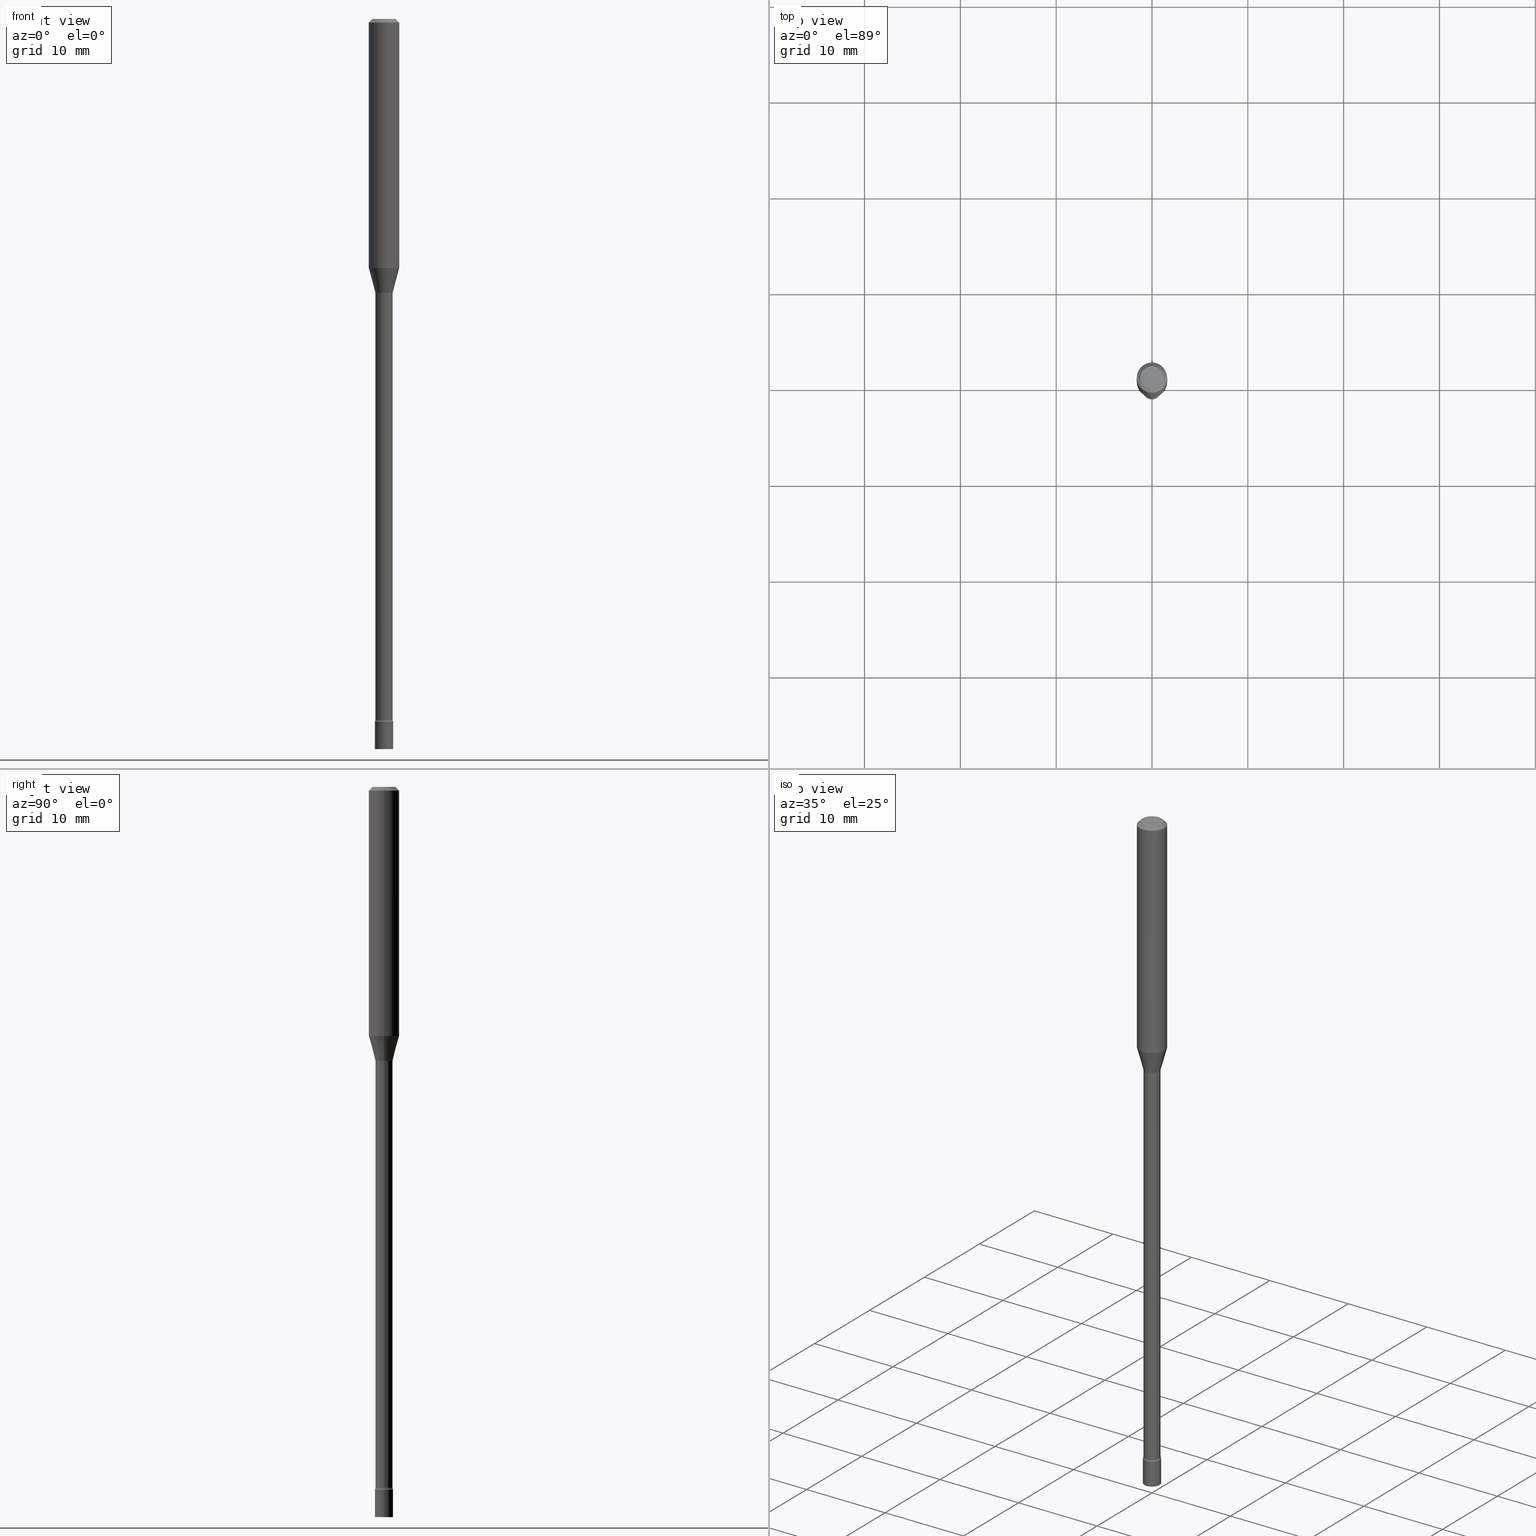
[diagram: canonical four-view strip — front | top / right | iso, engineering-drawing reading convention]
A machine part, canonical four-view strip (front | top / right | iso — engineering-drawing reading convention). The complete STEP part file that produces these views, byte-faithful:
ISO-10303-21;
HEADER;
FILE_DESCRIPTION (( 'STEP AP203' ),
    '1' );
FILE_NAME ('09710.STEP',
    '2024-03-09T01:06:56',
    ( '' ),
    ( '' ),
    'SwSTEP 2.0',
    'SolidWorks 2023',
    '' );
FILE_SCHEMA (( 'CONFIG_CONTROL_DESIGN' ));
ENDSEC;

DATA;
#1 = CARTESIAN_POINT ( 'NONE',  ( 0.04749999999999999362, -4.035134999187579609E-16, -2.891391092786643933E-17 ) ) ;
#2 = EDGE_LOOP ( 'NONE', ( #169, #90, #278, #4 ) ) ;
#3 = DIRECTION ( 'NONE',  ( 1.000000000000000000, -6.982962677686270655E-15, 0.000000000000000000 ) ) ;
#4 = ORIENTED_EDGE ( 'NONE', *, *, #168, .F. ) ;
#5 = AXIS2_PLACEMENT_3D ( 'NONE', #61, #25, #52 ) ;
#6 = CIRCLE ( 'NONE', #315, 0.01499999999999995955 ) ;
#7 = CARTESIAN_POINT ( 'NONE',  ( -0.05025000000000016953, -9.695270121667764211E-15, -2.879098259685361150 ) ) ;
#8 = ORIENTED_EDGE ( 'NONE', *, *, #172, .T. ) ;
#9 = VERTEX_POINT ( 'NONE', #182 ) ;
#10 = EDGE_CURVE ( 'NONE', #9, #321, #514, .T. ) ;
#11 = PERSON_AND_ORGANIZATION ( #159, #147 ) ;
#12 = EDGE_LOOP ( 'NONE', ( #503, #42, #500, #238 ) ) ;
#13 = VECTOR ( 'NONE', #89, 39.37007874015748143 ) ;
#14 = DATE_AND_TIME ( #55, #506 ) ;
#15 = DIRECTION ( 'NONE',  ( -2.445468806185136597E-29, 3.491481338843145583E-15, 1.000000000000000000 ) ) ;
#16 = CARTESIAN_POINT ( 'NONE',  ( 7.336406418555409790E-29, -1.047444401652943635E-14, -3.000000000000000444 ) ) ;
#17 = CARTESIAN_POINT ( 'NONE',  ( -0.03749999999999996392, -9.813453099330125724E-15, -2.887000000000000011 ) ) ;
#18 = DIRECTION ( 'NONE',  ( -6.982962677686266711E-15, -1.000000000000000000, 3.491481338843145583E-15 ) ) ;
#19 = EDGE_LOOP ( 'NONE', ( #404, #143, #474, #236 ) ) ;
#20 = PRODUCT_RELATED_PRODUCT_CATEGORY ( 'detail', '', ( #310 ) ) ;
#21 = CIRCLE ( 'NONE', #156, 0.06250000000000000000 ) ;
#22 = EDGE_CURVE ( 'NONE', #84, #378, #275, .T. ) ;
#23 = ORIENTED_EDGE ( 'NONE', *, *, #329, .F. ) ;
#24 = LINE ( 'NONE', #187, #515 ) ;
#25 = DIRECTION ( 'NONE',  ( -2.445468806185136597E-29, 3.491481338843145583E-15, 1.000000000000000000 ) ) ;
#26 = DIRECTION ( 'NONE',  ( -2.445468806185136597E-29, 3.491481338843145583E-15, 1.000000000000000000 ) ) ;
#27 = DIRECTION ( 'NONE',  ( -6.982962677686266711E-15, -1.000000000000000000, 3.491481338843145583E-15 ) ) ;
#28 = EDGE_CURVE ( 'NONE', #9, #332, #95, .T. ) ;
#29 = APPLICATION_CONTEXT ( 'configuration controlled 3d designs of mechanical parts and assemblies' ) ;
#30 = CIRCLE ( 'NONE', #223, 0.03749999999999999861 ) ;
#31 = CARTESIAN_POINT ( 'NONE',  ( -0.03576111260566397498, -3.667158523938391703E-15, -1.123092501787273267 ) ) ;
#32 =( LENGTH_UNIT ( ) NAMED_UNIT ( * ) SI_UNIT ( $, .METRE. ) );
#33 = CARTESIAN_POINT ( 'NONE',  ( 3.668203209277712094E-31, -5.237222008264728876E-17, -0.01500000000000003067 ) ) ;
#34 = DIRECTION ( 'NONE',  ( 1.000000000000000000, -6.982962677686255667E-15, 4.883557194083108977E-29 ) ) ;
#35 = DIRECTION ( 'NONE',  ( 1.000000000000000000, -6.982962677686265922E-15, 4.876176775795935793E-29 ) ) ;
#36 = CIRCLE ( 'NONE', #68, 0.06250000000000000000 ) ;
#37 = AXIS2_PLACEMENT_3D ( 'NONE', #64, #26, #381 ) ;
#38 = CC_DESIGN_APPROVAL ( #69, ( #395 ) ) ;
#39 = ORIENTED_EDGE ( 'NONE', *, *, #10, .T. ) ;
#40 = APPROVAL_ROLE ( '' ) ;
#41 = CARTESIAN_POINT ( 'NONE',  ( -0.03749999999999999861, 2.664535259100375598E-16, -1.844600658845589458E-30 ) ) ;
#42 = ORIENTED_EDGE ( 'NONE', *, *, #482, .T. ) ;
#43 = DATE_AND_TIME ( #400, #121 ) ;
#44 = CARTESIAN_POINT ( 'NONE',  ( 2.755981688099874044E-29, -3.934811439776616159E-15, -1.126974787463810967 ) ) ;
#45 = VERTEX_POINT ( 'NONE', #101 ) ;
#46 = AXIS2_PLACEMENT_3D ( 'NONE', #309, #27, #429 ) ;
#47 = LINE ( 'NONE', #170, #291 ) ;
#48 = ORIENTED_EDGE ( 'NONE', *, *, #272, .F. ) ;
#49 = ADVANCED_FACE ( 'NONE', ( #183 ), #423, .T. ) ;
#50 = ORIENTED_EDGE ( 'NONE', *, *, #59, .F. ) ;
#51 = DIRECTION ( 'NONE',  ( -1.000000000000000000, 6.982962677686265922E-15, -4.876176775795935793E-29 ) ) ;
#52 = DIRECTION ( 'NONE',  ( 1.000000000000000000, -6.982962677686270655E-15, 0.000000000000000000 ) ) ;
#53 = AXIS2_PLACEMENT_3D ( 'NONE', #56, #373, #459 ) ;
#54 = APPROVAL_PERSON_ORGANIZATION ( #387, #341, #237 ) ;
#55 = CALENDAR_DATE ( 2024, 8, 3 ) ;
#56 = CARTESIAN_POINT ( 'NONE',  ( 7.070806723891919892E-46, -1.009523804376275404E-31, -2.891391092786900929E-17 ) ) ;
#57 = FACE_OUTER_BOUND ( 'NONE', #497, .T. ) ;
#58 = CARTESIAN_POINT ( 'NONE',  ( 7.060068443456490467E-29, -1.007990662524016235E-14, -2.887000000000000011 ) ) ;
#59 = EDGE_CURVE ( 'NONE', #210, #259, #197, .T. ) ;
#60 = ORIENTED_EDGE ( 'NONE', *, *, #195, .F. ) ;
#61 = CARTESIAN_POINT ( 'NONE',  ( 2.755981688099874044E-29, -3.934811439776616159E-15, -1.126974787463810967 ) ) ;
#62 = CC_DESIGN_DATE_AND_TIME_ASSIGNMENT ( #193, #348, ( #433 ) ) ;
#63 = CARTESIAN_POINT ( 'NONE',  ( 3.668203209277712094E-31, -5.237222008264728876E-17, -0.01500000000000003067 ) ) ;
#64 = CARTESIAN_POINT ( 'NONE',  ( 2.746487679581201302E-29, -3.921256511784927150E-15, -1.123092501787273267 ) ) ;
#65 = CARTESIAN_POINT ( 'NONE',  ( -0.03524999999999999661, -6.743098328726474554E-15, -1.126974787463810967 ) ) ;
#66 = DIRECTION ( 'NONE',  ( -2.445468806185136597E-29, 3.491481338843145583E-15, 1.000000000000000000 ) ) ;
#67 = ORIENTED_EDGE ( 'NONE', *, *, #86, .T. ) ;
#68 = AXIS2_PLACEMENT_3D ( 'NONE', #398, #313, #164 ) ;
#69 = APPROVAL ( #132, 'UNSPECIFIED' ) ;
#70 = CIRCLE ( 'NONE', #437, 0.04749999999999999362 ) ;
#71 = EDGE_CURVE ( 'NONE', #235, #321, #175, .T. ) ;
#72 = EDGE_CURVE ( 'NONE', #279, #336, #227, .T. ) ;
#73 = FACE_OUTER_BOUND ( 'NONE', #481, .T. ) ;
#74 = CARTESIAN_POINT ( 'NONE',  ( 0.000000000000000000, 0.000000000000000000, 0.000000000000000000 ) ) ;
#75 = DIMENSIONAL_EXPONENTS ( 1.000000000000000000, 0.000000000000000000, 0.000000000000000000, 0.000000000000000000, 0.000000000000000000, 0.000000000000000000, 0.000000000000000000 ) ;
#76 = PERSON_AND_ORGANIZATION_ROLE ( 'design_owner' ) ;
#77 = DIRECTION ( 'NONE',  ( 1.000000000000000000, -6.982962677686266711E-15, 4.876176775795935793E-29 ) ) ;
#78 = CIRCLE ( 'NONE', #368, 0.03749999999999999861 ) ;
#79 = ORIENTED_EDGE ( 'NONE', *, *, #283, .F. ) ;
#80 = CIRCLE ( 'NONE', #241, 0.03525000000000021172 ) ;
#81 = LENGTH_MEASURE_WITH_UNIT ( LENGTH_MEASURE( 0.02539999999999999897 ), #32 );
#82 = EDGE_LOOP ( 'NONE', ( #127, #318 ) ) ;
#83 = PLANE ( 'NONE',  #158 ) ;
#84 = VERTEX_POINT ( 'NONE', #215 ) ;
#85 = ORIENTED_EDGE ( 'NONE', *, *, #72, .F. ) ;
#86 = EDGE_CURVE ( 'NONE', #279, #259, #165, .T. ) ;
#87 = AXIS2_PLACEMENT_3D ( 'NONE', #138, #499, #491 ) ;
#88 = CIRCLE ( 'NONE', #360, 0.03749999999999999861 ) ;
#89 = DIRECTION ( 'NONE',  ( -2.445468806185136877E-29, 3.491481338843145188E-15, 1.000000000000000000 ) ) ;
#90 = ORIENTED_EDGE ( 'NONE', *, *, #28, .T. ) ;
#91 = CARTESIAN_POINT ( 'NONE',  ( 0.03749999999999999861, -1.073630511694267136E-14, -3.000000000000000444 ) ) ;
#92 = EDGE_CURVE ( 'NONE', #279, #235, #289, .T. ) ;
#93 = DIRECTION ( 'NONE',  ( 2.445468806185136597E-29, -3.491481338843145583E-15, -1.000000000000000000 ) ) ;
#94 = ORIENTED_EDGE ( 'NONE', *, *, #195, .T. ) ;
#95 = CIRCLE ( 'NONE', #495, 0.03576111260566397498 ) ;
#96 = AXIS2_PLACEMENT_3D ( 'NONE', #208, #131, #284 ) ;
#97 = DIRECTION ( 'NONE',  ( -2.445468806185136877E-29, 3.491481338843145188E-15, 1.000000000000000000 ) ) ;
#98 = DESIGN_CONTEXT ( 'detailed design', #29, 'design' ) ;
#99 = DIRECTION ( 'NONE',  ( 1.000000000000000000, -6.982962677686272233E-15, 0.000000000000000000 ) ) ;
#100 = DIRECTION ( 'NONE',  ( -0.7071067811865475727, 2.468850131082257455E-15, -0.7071067811865474617 ) ) ;
#101 = CARTESIAN_POINT ( 'NONE',  ( -0.03749999999999999861, -1.001072179497476115E-14, -2.887000000000000011 ) ) ;
#102 = CC_DESIGN_PERSON_AND_ORGANIZATION_ASSIGNMENT ( #434, #76, ( #310 ) ) ;
#103 = LINE ( 'NONE', #382, #327 ) ;
#104 = CIRCLE ( 'NONE', #392, 0.06250000000000000000 ) ;
#105 = VECTOR ( 'NONE', #229, 39.37007874015748143 ) ;
#106 = DIRECTION ( 'NONE',  ( -2.445468806185136597E-29, 3.491481338843145583E-15, 1.000000000000000000 ) ) ;
#107 = CARTESIAN_POINT ( 'NONE',  ( 7.060068443456490467E-29, -1.007990662524016235E-14, -2.887000000000000011 ) ) ;
#108 = FACE_OUTER_BOUND ( 'NONE', #438, .T. ) ;
#109 = DIRECTION ( 'NONE',  ( 1.000000000000000000, -6.982962677686267499E-15, 4.876681293081646444E-29 ) ) ;
#110 = ADVANCED_FACE ( 'NONE', ( #57 ), #219, .T. ) ;
#111 = DIRECTION ( 'NONE',  ( 1.000000000000000000, -6.982962677686265922E-15, 4.876176775795935793E-29 ) ) ;
#112 = CALENDAR_DATE ( 2024, 8, 3 ) ;
#113 = DIRECTION ( 'NONE',  ( -1.000000000000000000, 6.982962677686266711E-15, 0.000000000000000000 ) ) ;
#114 = CIRCLE ( 'NONE', #461, 0.06250000000000000000 ) ;
#115 = CARTESIAN_POINT ( 'NONE',  ( 2.618611004133055554E-16, 0.03749999999998991640, -2.887000000000000011 ) ) ;
#116 = DIRECTION ( 'NONE',  ( 1.000000000000000000, -6.982962677686266711E-15, 4.876176775795935793E-29 ) ) ;
#117 = FACE_OUTER_BOUND ( 'NONE', #410, .T. ) ;
#118 = DIRECTION ( 'NONE',  ( -2.438088387897960049E-29, 3.491481338843145188E-15, 1.000000000000000000 ) ) ;
#119 = VECTOR ( 'NONE', #192, 39.37007874015748854 ) ;
#120 = ORIENTED_EDGE ( 'NONE', *, *, #10, .F. ) ;
#121 = LOCAL_TIME ( 20, 6, 56.00000000000000000, #475 ) ;
#122 = CARTESIAN_POINT ( 'NONE',  ( 0.06250000000000000000, -4.009273661859858601E-15, -1.023301615493748429 ) ) ;
#123 = ORIENTED_EDGE ( 'NONE', *, *, #86, .F. ) ;
#124 = COORDINATED_UNIVERSAL_TIME_OFFSET ( 5, 0, .BEHIND. ) ;
#125 = DIRECTION ( 'NONE',  ( -2.445468806185136597E-29, 3.491481338843145583E-15, 1.000000000000000000 ) ) ;
#126 = ORIENTED_EDGE ( 'NONE', *, *, #22, .F. ) ;
#127 = ORIENTED_EDGE ( 'NONE', *, *, #22, .T. ) ;
#128 = CIRCLE ( 'NONE', #485, 0.03749999999999999861 ) ;
#129 =( GEOMETRIC_REPRESENTATION_CONTEXT ( 3 ) GLOBAL_UNCERTAINTY_ASSIGNED_CONTEXT ( ( #502 ) ) GLOBAL_UNIT_ASSIGNED_CONTEXT ( ( #232, #277, #393 ) ) REPRESENTATION_CONTEXT ( 'NONE', 'WORKASPACE' ) );
#130 = EDGE_CURVE ( 'NONE', #259, #210, #128, .T. ) ;
#131 = DIRECTION ( 'NONE',  ( -2.445468806185136597E-29, 3.491481338843145583E-15, 1.000000000000000000 ) ) ;
#132 = APPROVAL_STATUS ( 'not_yet_approved' ) ;
#133 = ORIENTED_EDGE ( 'NONE', *, *, #231, .F. ) ;
#134 = APPROVAL_ROLE ( '' ) ;
#135 = DIRECTION ( 'NONE',  ( 7.105427357601001859E-15, 1.000000000000000000, -3.491481338843145583E-15 ) ) ;
#136 = COORDINATED_UNIVERSAL_TIME_OFFSET ( 5, 0, .BEHIND. ) ;
#137 = DIRECTION ( 'NONE',  ( 1.000000000000000000, -6.982962677686287221E-15, 0.000000000000000000 ) ) ;
#138 = CARTESIAN_POINT ( 'NONE',  ( 0.000000000000000000, 0.000000000000000000, 0.000000000000000000 ) ) ;
#139 = AXIS2_PLACEMENT_3D ( 'NONE', #44, #403, #3 ) ;
#140 = ORIENTED_EDGE ( 'NONE', *, *, #322, .T. ) ;
#141 = FACE_OUTER_BOUND ( 'NONE', #2, .T. ) ;
#142 = EDGE_CURVE ( 'NONE', #9, #374, #263, .T. ) ;
#143 = ORIENTED_EDGE ( 'NONE', *, *, #512, .T. ) ;
#144 = ADVANCED_BREP_SHAPE_REPRESENTATION ( '09710', ( #230, #401, #486 ), #129 ) ;
#145 = EDGE_CURVE ( 'NONE', #334, #339, #104, .T. ) ;
#146 = DIRECTION ( 'NONE',  ( -2.445468806185136597E-29, 3.491481338843145583E-15, 1.000000000000000000 ) ) ;
#147 = ORGANIZATION ( 'UNSPECIFIED', 'UNSPECIFIED', '' ) ;
#148 = CARTESIAN_POINT ( 'NONE',  ( -0.06250000000000000000, -1.368516147443494389E-15, -0.01500000000000003067 ) ) ;
#149 = LINE ( 'NONE', #260, #453 ) ;
#150 = DIRECTION ( 'NONE',  ( -2.445468806185136597E-29, 3.491481338843145583E-15, 1.000000000000000000 ) ) ;
#151 = PERSON_AND_ORGANIZATION_ROLE ( 'creator' ) ;
#152 = DIRECTION ( 'NONE',  ( 1.000000000000000000, -6.982962677686242256E-15, 0.000000000000000000 ) ) ;
#153 = EDGE_CURVE ( 'NONE', #339, #334, #36, .T. ) ;
#154 = FACE_OUTER_BOUND ( 'NONE', #510, .T. ) ;
#155 = AXIS2_PLACEMENT_3D ( 'NONE', #420, #135, #186 ) ;
#156 = AXIS2_PLACEMENT_3D ( 'NONE', #324, #125, #405 ) ;
#157 = DIRECTION ( 'NONE',  ( 1.000000000000000000, -6.982962677686266711E-15, 4.876176775795935793E-29 ) ) ;
#158 = AXIS2_PLACEMENT_3D ( 'NONE', #233, #432, #479 ) ;
#159 = PERSON ( 'UNSPECIFIED', 'UNSPECIFIED', 'UNSPECIFIED', ('UNSPECIFIED'), ('UNSPECIFIED'), ('UNSPECIFIED') ) ;
#160 = CARTESIAN_POINT ( 'NONE',  ( 0.03749999999999999861, -2.618611004132350016E-16, 1.828566290923475922E-30 ) ) ;
#161 = LINE ( 'NONE', #41, #13 ) ;
#162 = ORIENTED_EDGE ( 'NONE', *, *, #498, .T. ) ;
#163 = MECHANICAL_CONTEXT ( 'NONE', #217, 'mechanical' ) ;
#164 = DIRECTION ( 'NONE',  ( 1.000000000000000000, -6.982962677686266711E-15, 0.000000000000000000 ) ) ;
#165 = CIRCLE ( 'NONE', #280, 0.01499999999999995955 ) ;
#166 = ORIENTED_EDGE ( 'NONE', *, *, #296, .F. ) ;
#167 = CC_DESIGN_PERSON_AND_ORGANIZATION_ASSIGNMENT ( #173, #419, ( #386 ) ) ;
#168 = EDGE_CURVE ( 'NONE', #374, #365, #114, .T. ) ;
#169 = ORIENTED_EDGE ( 'NONE', *, *, #142, .F. ) ;
#170 = CARTESIAN_POINT ( 'NONE',  ( -0.06250000000000000000, 4.440892098500626162E-16, -3.074334431409316114E-30 ) ) ;
#171 = ORIENTED_EDGE ( 'NONE', *, *, #172, .F. ) ;
#172 = EDGE_CURVE ( 'NONE', #378, #334, #303, .T. ) ;
#173 = PERSON_AND_ORGANIZATION ( #159, #147 ) ;
#174 = ORIENTED_EDGE ( 'NONE', *, *, #460, .T. ) ;
#175 = CIRCLE ( 'NONE', #5, 0.03524999999999999661 ) ;
#176 = AXIS2_PLACEMENT_3D ( 'NONE', #518, #271, #402 ) ;
#177 = APPROVAL_PERSON_ORGANIZATION ( #488, #69, #134 ) ;
#178 = APPROVAL_DATE_TIME ( #14, #69 ) ;
#179 = CARTESIAN_POINT ( 'NONE',  ( 7.040744984002464310E-29, -1.005231784638721389E-14, -2.879098259685361150 ) ) ;
#180 = DIRECTION ( 'NONE',  ( 1.000000000000000000, -6.982962677686242256E-15, 0.000000000000000000 ) ) ;
#181 = CARTESIAN_POINT ( 'NONE',  ( 7.060068443456490467E-29, -1.007990662524016235E-14, -2.887000000000000011 ) ) ;
#182 = CARTESIAN_POINT ( 'NONE',  ( -0.03576111260566397498, -3.397953904296398009E-15, -1.123092501787273267 ) ) ;
#183 = FACE_OUTER_BOUND ( 'NONE', #248, .T. ) ;
#184 = TOROIDAL_SURFACE ( 'NONE', #467, 0.05024999999999999606, 0.01499999999999999598 ) ;
#185 = AXIS2_PLACEMENT_3D ( 'NONE', #274, #359, #319 ) ;
#186 = DIRECTION ( 'NONE',  ( -1.000000000000000000, 7.105427357600993970E-15, 0.000000000000000000 ) ) ;
#187 = CARTESIAN_POINT ( 'NONE',  ( -0.03525000000000010764, 2.504663143554360803E-16, -1.733924619314859457E-30 ) ) ;
#188 = ORIENTED_EDGE ( 'NONE', *, *, #498, .F. ) ;
#189 = CARTESIAN_POINT ( 'NONE',  ( 7.040744984002464310E-29, -1.005231784638721389E-14, -2.879098259685361150 ) ) ;
#190 = CARTESIAN_POINT ( 'NONE',  ( 0.03749999999999996392, -1.034176772565339577E-14, -2.887000000000000011 ) ) ;
#191 = AXIS2_PLACEMENT_3D ( 'NONE', #16, #367, #180 ) ;
#192 = DIRECTION ( 'NONE',  ( -0.2588190451025212391, 5.211531920934549464E-15, 0.9659258262890679791 ) ) ;
#193 = DATE_AND_TIME ( #112, #385 ) ;
#194 = DIRECTION ( 'NONE',  ( -2.445468806185136597E-29, 3.491481338843145583E-15, 1.000000000000000000 ) ) ;
#195 = EDGE_CURVE ( 'NONE', #250, #45, #161, .T. ) ;
#196 = DIRECTION ( 'NONE',  ( -2.438088387897960049E-29, 3.491481338843145188E-15, 1.000000000000000000 ) ) ;
#197 = CIRCLE ( 'NONE', #384, 0.03749999999999999861 ) ;
#198 = AXIS2_PLACEMENT_3D ( 'NONE', #435, #200, #77 ) ;
#199 = APPROVAL_PERSON_ORGANIZATION ( #267, #211, #40 ) ;
#200 = DIRECTION ( 'NONE',  ( -2.445468806185136597E-29, 3.491481338843145583E-15, 1.000000000000000000 ) ) ;
#201 = EDGE_LOOP ( 'NONE', ( #361, #174 ) ) ;
#202 = VERTEX_POINT ( 'NONE', #91 ) ;
#203 = CC_DESIGN_PERSON_AND_ORGANIZATION_ASSIGNMENT ( #11, #209, ( #386 ) ) ;
#204 = VERTEX_POINT ( 'NONE', #418 ) ;
#205 = VECTOR ( 'NONE', #304, 39.37007874015748143 ) ;
#206 = ADVANCED_FACE ( 'NONE', ( #330 ), #338, .T. ) ;
#207 = ORIENTED_EDGE ( 'NONE', *, *, #409, .T. ) ;
#208 = CARTESIAN_POINT ( 'NONE',  ( 2.755981688099874044E-29, -3.934811439776616159E-15, -1.126974787463810967 ) ) ;
#209 = PERSON_AND_ORGANIZATION_ROLE ( 'creator' ) ;
#210 = VERTEX_POINT ( 'NONE', #17 ) ;
#211 = APPROVAL ( #397, 'UNSPECIFIED' ) ;
#212 = ORIENTED_EDGE ( 'NONE', *, *, #266, .F. ) ;
#213 = CIRCLE ( 'NONE', #46, 0.01499999999999999424 ) ;
#214 = PLANE ( 'NONE',  #234 ) ;
#215 = CARTESIAN_POINT ( 'NONE',  ( -0.04749999999999999362, 3.578768372314209027E-16, -2.891391092787141902E-17 ) ) ;
#216 = CARTESIAN_POINT ( 'NONE',  ( 0.03524999999999999661, -4.180960874165056840E-15, -1.126974787463810967 ) ) ;
#217 = APPLICATION_CONTEXT ( 'configuration controlled 3d designs of mechanical parts and assemblies' ) ;
#218 = COORDINATED_UNIVERSAL_TIME_OFFSET ( 5, 0, .BEHIND. ) ;
#219 = CYLINDRICAL_SURFACE ( 'NONE', #325, 0.06250000000000000000 ) ;
#220 = DIRECTION ( 'NONE',  ( -2.445468806185136597E-29, 3.491481338843145583E-15, 1.000000000000000000 ) ) ;
#221 = ORIENTED_EDGE ( 'NONE', *, *, #460, .F. ) ;
#222 = AXIS2_PLACEMENT_3D ( 'NONE', #179, #246, #417 ) ;
#223 = AXIS2_PLACEMENT_3D ( 'NONE', #58, #220, #422 ) ;
#224 = ORIENTED_EDGE ( 'NONE', *, *, #482, .F. ) ;
#225 = PLANE ( 'NONE',  #281 ) ;
#226 = DIRECTION ( 'NONE',  ( 1.000000000000000000, -6.982962677686270655E-15, 4.883557194083114022E-29 ) ) ;
#227 = CIRCLE ( 'NONE', #222, 0.03525000000000021172 ) ;
#228 = AXIS2_PLACEMENT_3D ( 'NONE', #258, #146, #501 ) ;
#229 = DIRECTION ( 'NONE',  ( -2.445468806185136877E-29, 3.491481338843145188E-15, 1.000000000000000000 ) ) ;
#230 = MANIFOLD_SOLID_BREP ( 'Body-Move/Copy2[1]', #305 ) ;
#231 = EDGE_CURVE ( 'NONE', #204, #45, #78, .T. ) ;
#232 =( CONVERSION_BASED_UNIT ( 'INCH', #81 ) LENGTH_UNIT ( ) NAMED_UNIT ( #75 ) );
#233 = CARTESIAN_POINT ( 'NONE',  ( 2.618611004133083164E-16, 0.03749999999998952088, -3.000000000000000444 ) ) ;
#234 = AXIS2_PLACEMENT_3D ( 'NONE', #448, #244, #51 ) ;
#235 = VERTEX_POINT ( 'NONE', #216 ) ;
#236 = ORIENTED_EDGE ( 'NONE', *, *, #92, .F. ) ;
#237 = APPROVAL_ROLE ( '' ) ;
#238 = ORIENTED_EDGE ( 'NONE', *, *, #362, .F. ) ;
#239 = VECTOR ( 'NONE', #455, 39.37007874015748143 ) ;
#240 = ORIENTED_EDGE ( 'NONE', *, *, #153, .T. ) ;
#241 = AXIS2_PLACEMENT_3D ( 'NONE', #189, #458, #344 ) ;
#242 = ORIENTED_EDGE ( 'NONE', *, *, #142, .T. ) ;
#243 = CC_DESIGN_PERSON_AND_ORGANIZATION_ASSIGNMENT ( #311, #151, ( #433 ) ) ;
#244 = DIRECTION ( 'NONE',  ( 2.438088387897960049E-29, -3.491481338843145188E-15, -1.000000000000000000 ) ) ;
#245 = ORIENTED_EDGE ( 'NONE', *, *, #168, .T. ) ;
#246 = DIRECTION ( 'NONE',  ( -2.445468806185136597E-29, 3.491481338843145583E-15, 1.000000000000000000 ) ) ;
#247 = CC_DESIGN_DATE_AND_TIME_ASSIGNMENT ( #452, #450, ( #395 ) ) ;
#248 = EDGE_LOOP ( 'NONE', ( #212, #8, #441, #188 ) ) ;
#249 = ADVANCED_FACE ( 'NONE', ( #335 ), #184, .F. ) ;
#250 = VERTEX_POINT ( 'NONE', #507 ) ;
#251 = ADVANCED_FACE ( 'NONE', ( #463 ), #300, .T. ) ;
#252 = CARTESIAN_POINT ( 'NONE',  ( 3.668203209277712094E-31, -5.237222008264728876E-17, -0.01500000000000003067 ) ) ;
#253 = AXIS2_PLACEMENT_3D ( 'NONE', #252, #93, #371 ) ;
#254 = DIRECTION ( 'NONE',  ( 1.000000000000000000, -6.982962677686272233E-15, 0.000000000000000000 ) ) ;
#255 = DIRECTION ( 'NONE',  ( -2.445468806185136597E-29, 3.491481338843145583E-15, 1.000000000000000000 ) ) ;
#256 = CARTESIAN_POINT ( 'NONE',  ( -0.03525000000000021172, -9.807652315680951346E-15, -2.879098259685361150 ) ) ;
#257 = CARTESIAN_POINT ( 'NONE',  ( 2.746487679581201302E-29, -3.921256511784927150E-15, -1.123092501787273267 ) ) ;
#258 = CARTESIAN_POINT ( 'NONE',  ( 0.000000000000000000, 0.000000000000000000, 0.000000000000000000 ) ) ;
#259 = VERTEX_POINT ( 'NONE', #190 ) ;
#260 = CARTESIAN_POINT ( 'NONE',  ( -0.06250000000000000000, 3.840629472727443437E-16, -0.01500000000000003067 ) ) ;
#261 = CARTESIAN_POINT ( 'NONE',  ( 2.755981688099874044E-29, -3.934811439776616159E-15, -1.126974787463810967 ) ) ;
#262 = CARTESIAN_POINT ( 'NONE',  ( 0.06250000000000000000, -4.364351673553916694E-16, 3.047610484872459871E-30 ) ) ;
#263 = LINE ( 'NONE', #31, #119 ) ;
#264 = AXIS2_PLACEMENT_3D ( 'NONE', #268, #390, #34 ) ;
#265 = LINE ( 'NONE', #262, #105 ) ;
#266 = EDGE_CURVE ( 'NONE', #378, #84, #70, .T. ) ;
#267 = PERSON_AND_ORGANIZATION ( #159, #147 ) ;
#268 = CARTESIAN_POINT ( 'NONE',  ( 7.040744984002464310E-29, -1.005231784638721389E-14, -2.879098259685361150 ) ) ;
#269 = DIRECTION ( 'NONE',  ( 7.105427357601001859E-15, 1.000000000000000000, -3.491481338843145583E-15 ) ) ;
#270 = PRODUCT_DEFINITION_SHAPE ( 'NONE', 'NONE',  #433 ) ;
#271 = DIRECTION ( 'NONE',  ( -2.445468806185136597E-29, 3.491481338843145583E-15, 1.000000000000000000 ) ) ;
#272 = EDGE_CURVE ( 'NONE', #332, #365, #103, .T. ) ;
#273 = DIRECTION ( 'NONE',  ( -1.000000000000000000, 7.105427357601009747E-15, 0.000000000000000000 ) ) ;
#274 = CARTESIAN_POINT ( 'NONE',  ( 2.746487679581201302E-29, -3.921256511784927150E-15, -1.123092501787273267 ) ) ;
#275 = CIRCLE ( 'NONE', #53, 0.04749999999999999362 ) ;
#276 = ORIENTED_EDGE ( 'NONE', *, *, #145, .F. ) ;
#277 =( NAMED_UNIT ( * ) PLANE_ANGLE_UNIT ( ) SI_UNIT ( $, .RADIAN. ) );
#278 = ORIENTED_EDGE ( 'NONE', *, *, #272, .T. ) ;
#279 = VERTEX_POINT ( 'NONE', #513 ) ;
#280 = AXIS2_PLACEMENT_3D ( 'NONE', #372, #18, #137 ) ;
#281 = AXIS2_PLACEMENT_3D ( 'NONE', #379, #118, #347 ) ;
#282 = EDGE_LOOP ( 'NONE', ( #60, #421, #494, #221 ) ) ;
#283 = EDGE_CURVE ( 'NONE', #250, #202, #88, .T. ) ;
#284 = DIRECTION ( 'NONE',  ( 1.000000000000000000, -6.982962677686270655E-15, 4.883557194083114022E-29 ) ) ;
#285 = ORIENTED_EDGE ( 'NONE', *, *, #394, .F. ) ;
#286 = PERSON_AND_ORGANIZATION_ROLE ( 'classification_officer' ) ;
#287 = ORIENTED_EDGE ( 'NONE', *, *, #406, .F. ) ;
#288 = ADVANCED_FACE ( 'NONE', ( #154 ), #464, .F. ) ;
#289 = LINE ( 'NONE', #454, #290 ) ;
#290 = VECTOR ( 'NONE', #97, 39.37007874015748143 ) ;
#291 = VECTOR ( 'NONE', #483, 39.37007874015748143 ) ;
#292 = EDGE_LOOP ( 'NONE', ( #171, #126, #162, #240 ) ) ;
#293 = ADVANCED_FACE ( 'NONE', ( #426 ), #306, .F. ) ;
#294 = ORIENTED_EDGE ( 'NONE', *, *, #28, .F. ) ;
#295 = CARTESIAN_POINT ( 'NONE',  ( 7.070806723891919892E-46, -1.009523804376275404E-31, -2.891391092786900929E-17 ) ) ;
#296 = EDGE_CURVE ( 'NONE', #202, #204, #504, .T. ) ;
#297 = CONICAL_SURFACE ( 'NONE', #468, 0.03576111260566397498, 0.2617993877991499629 ) ;
#298 = DIRECTION ( 'NONE',  ( -2.445468806185136597E-29, 3.491481338843145583E-15, 1.000000000000000000 ) ) ;
#299 = DIRECTION ( 'NONE',  ( 1.000000000000000000, -6.982962677686270655E-15, 0.000000000000000000 ) ) ;
#300 = CYLINDRICAL_SURFACE ( 'NONE', #228, 0.03525000000000010764 ) ;
#301 = FACE_OUTER_BOUND ( 'NONE', #12, .T. ) ;
#302 = DIRECTION ( 'NONE',  ( -2.445468806185136597E-29, 3.491481338843145583E-15, 1.000000000000000000 ) ) ;
#303 = LINE ( 'NONE', #430, #239 ) ;
#304 = DIRECTION ( 'NONE',  ( -2.445468806185136877E-29, 3.491481338843145188E-15, 1.000000000000000000 ) ) ;
#305 = CLOSED_SHELL ( 'NONE', ( #206, #519, #377, #383 ) ) ;
#306 = TOROIDAL_SURFACE ( 'NONE', #264, 0.05025000000000016953, 0.01499999999999995608 ) ;
#307 = DIRECTION ( 'NONE',  ( -2.445468806185136597E-29, 3.491481338843145583E-15, 1.000000000000000000 ) ) ;
#308 = ADVANCED_FACE ( 'NONE', ( #466 ), #477, .T. ) ;
#309 = CARTESIAN_POINT ( 'NONE',  ( 0.05024999999999999606, -4.285705314330351787E-15, -1.126974787463810967 ) ) ;
#310 = PRODUCT ( '09710', '09710', '', ( #163 ) ) ;
#311 = PERSON_AND_ORGANIZATION ( #159, #147 ) ;
#312 = FACE_OUTER_BOUND ( 'NONE', #447, .T. ) ;
#313 = DIRECTION ( 'NONE',  ( -2.445468806185136597E-29, 3.491481338843145583E-15, 1.000000000000000000 ) ) ;
#314 = EDGE_LOOP ( 'NONE', ( #451, #94, #133, #166 ) ) ;
#315 = AXIS2_PLACEMENT_3D ( 'NONE', #7, #269, #273 ) ;
#316 = CARTESIAN_POINT ( 'NONE',  ( 2.502452180008818509E-29, -3.572838494504466932E-15, -1.023301615493748429 ) ) ;
#317 = LOCAL_TIME ( 20, 6, 56.00000000000000000, #136 ) ;
#318 = ORIENTED_EDGE ( 'NONE', *, *, #266, .T. ) ;
#319 = DIRECTION ( 'NONE',  ( 1.000000000000000000, -6.982962677686272233E-15, 0.000000000000000000 ) ) ;
#320 = FACE_OUTER_BOUND ( 'NONE', #282, .T. ) ;
#321 = VERTEX_POINT ( 'NONE', #65 ) ;
#322 = EDGE_CURVE ( 'NONE', #365, #334, #265, .T. ) ;
#323 = ORIENTED_EDGE ( 'NONE', *, *, #329, .T. ) ;
#324 = CARTESIAN_POINT ( 'NONE',  ( 2.502452180008818509E-29, -3.572838494504466932E-15, -1.023301615493748429 ) ) ;
#325 = AXIS2_PLACEMENT_3D ( 'NONE', #74, #391, #157 ) ;
#326 = CALENDAR_DATE ( 2024, 8, 3 ) ;
#327 = VECTOR ( 'NONE', #345, 39.37007874015748854 ) ;
#328 = ORIENTED_EDGE ( 'NONE', *, *, #362, .T. ) ;
#329 = EDGE_CURVE ( 'NONE', #332, #235, #213, .T. ) ;
#330 = FACE_OUTER_BOUND ( 'NONE', #314, .T. ) ;
#331 = SHAPE_DEFINITION_REPRESENTATION ( #270, #144 ) ;
#332 = VERTEX_POINT ( 'NONE', #354 ) ;
#333 = DIRECTION ( 'NONE',  ( -2.445468806185136597E-29, 3.491481338843145583E-15, 1.000000000000000000 ) ) ;
#334 = VERTEX_POINT ( 'NONE', #472 ) ;
#335 = FACE_OUTER_BOUND ( 'NONE', #357, .T. ) ;
#336 = VERTEX_POINT ( 'NONE', #256 ) ;
#337 = CIRCLE ( 'NONE', #185, 0.03576111260566397498 ) ;
#338 = CYLINDRICAL_SURFACE ( 'NONE', #87, 0.03749999999999999861 ) ;
#339 = VERTEX_POINT ( 'NONE', #148 ) ;
#340 = DIRECTION ( 'NONE',  ( -2.445468806185136877E-29, 3.491481338843145188E-15, 1.000000000000000000 ) ) ;
#341 = APPROVAL ( #520, 'UNSPECIFIED' ) ;
#342 = EDGE_LOOP ( 'NONE', ( #294, #39, #328, #23 ) ) ;
#343 = AXIS2_PLACEMENT_3D ( 'NONE', #63, #431, #113 ) ;
#344 = DIRECTION ( 'NONE',  ( 1.000000000000000000, -6.982962677686284065E-15, 0.000000000000000000 ) ) ;
#345 = DIRECTION ( 'NONE',  ( 0.2588190451025212391, 1.565188264969622362E-15, 0.9659258262890679791 ) ) ;
#346 = CC_DESIGN_PERSON_AND_ORGANIZATION_ASSIGNMENT ( #415, #286, ( #395 ) ) ;
#347 = DIRECTION ( 'NONE',  ( 1.000000000000000000, -6.982962677686265922E-15, 4.876176775795935793E-29 ) ) ;
#348 = DATE_TIME_ROLE ( 'creation_date' ) ;
#349 = CYLINDRICAL_SURFACE ( 'NONE', #375, 0.03749999999999999861 ) ;
#350 = DIRECTION ( 'NONE',  ( 1.000000000000000000, -6.982962677686266711E-15, 0.000000000000000000 ) ) ;
#351 = ADVANCED_FACE ( 'NONE', ( #301 ), #462, .T. ) ;
#352 = ORIENTED_EDGE ( 'NONE', *, *, #406, .T. ) ;
#353 = CLOSED_SHELL ( 'NONE', ( #439, #251, #388, #49, #366, #476, #470, #110, #308, #444, #288, #293, #351, #249 ) ) ;
#354 = CARTESIAN_POINT ( 'NONE',  ( 0.03576111260566397498, -4.170975026422814667E-15, -1.123092501787273267 ) ) ;
#355 = APPLICATION_PROTOCOL_DEFINITION ( 'international standard', 'config_control_design', 1994, #29 ) ;
#356 = CARTESIAN_POINT ( 'NONE',  ( 0.000000000000000000, 0.000000000000000000, 0.000000000000000000 ) ) ;
#357 = EDGE_LOOP ( 'NONE', ( #120, #285, #323, #443 ) ) ;
#358 = ORIENTED_EDGE ( 'NONE', *, *, #394, .T. ) ;
#359 = DIRECTION ( 'NONE',  ( -2.445468806185136597E-29, 3.491481338843145583E-15, 1.000000000000000000 ) ) ;
#360 = AXIS2_PLACEMENT_3D ( 'NONE', #508, #389, #152 ) ;
#361 = ORIENTED_EDGE ( 'NONE', *, *, #231, .T. ) ;
#362 = EDGE_CURVE ( 'NONE', #321, #235, #505, .T. ) ;
#363 = EDGE_CURVE ( 'NONE', #336, #210, #6, .T. ) ;
#364 = ORIENTED_EDGE ( 'NONE', *, *, #363, .T. ) ;
#365 = VERTEX_POINT ( 'NONE', #122 ) ;
#366 = ADVANCED_FACE ( 'NONE', ( #117 ), #440, .T. ) ;
#367 = DIRECTION ( 'NONE',  ( -2.445468806185136597E-29, 3.491481338843145583E-15, 1.000000000000000000 ) ) ;
#368 = AXIS2_PLACEMENT_3D ( 'NONE', #181, #333, #493 ) ;
#369 = APPROVAL_DATE_TIME ( #413, #211 ) ;
#370 = AXIS2_PLACEMENT_3D ( 'NONE', #380, #150, #35 ) ;
#371 = DIRECTION ( 'NONE',  ( -1.000000000000000000, 6.982962677686266711E-15, 0.000000000000000000 ) ) ;
#372 = CARTESIAN_POINT ( 'NONE',  ( 0.05025000000000016953, -1.040321172094095109E-14, -2.879098259685361150 ) ) ;
#373 = DIRECTION ( 'NONE',  ( -2.445468806185136597E-29, 3.491481338843145583E-15, 1.000000000000000000 ) ) ;
#374 = VERTEX_POINT ( 'NONE', #442 ) ;
#375 = AXIS2_PLACEMENT_3D ( 'NONE', #356, #307, #116 ) ;
#376 = CC_DESIGN_APPROVAL ( #211, ( #386 ) ) ;
#377 = ADVANCED_FACE ( 'NONE', ( #320 ), #349, .T. ) ;
#378 = VERTEX_POINT ( 'NONE', #1 ) ;
#379 = CARTESIAN_POINT ( 'NONE',  ( 7.060068443456490467E-29, -1.007990662524016235E-14, -2.887000000000000011 ) ) ;
#380 = CARTESIAN_POINT ( 'NONE',  ( 0.000000000000000000, 0.000000000000000000, 0.000000000000000000 ) ) ;
#381 = DIRECTION ( 'NONE',  ( 1.000000000000000000, -6.982962677686272233E-15, 0.000000000000000000 ) ) ;
#382 = CARTESIAN_POINT ( 'NONE',  ( 0.03576111260566397498, -4.170975026422814667E-15, -1.123092501787273267 ) ) ;
#383 = ADVANCED_FACE ( 'NONE', ( #312 ), #83, .T. ) ;
#384 = AXIS2_PLACEMENT_3D ( 'NONE', #412, #15, #424 ) ;
#385 = LOCAL_TIME ( 20, 6, 56.00000000000000000, #469 ) ;
#386 = PRODUCT_DEFINITION_FORMATION_WITH_SPECIFIED_SOURCE ( 'ANY', '', #310, .NOT_KNOWN. ) ;
#387 = PERSON_AND_ORGANIZATION ( #159, #147 ) ;
#388 = ADVANCED_FACE ( 'NONE', ( #73 ), #446, .F. ) ;
#389 = DIRECTION ( 'NONE',  ( -2.445468806185136597E-29, 3.491481338843145583E-15, 1.000000000000000000 ) ) ;
#390 = DIRECTION ( 'NONE',  ( -2.445468806185136597E-29, 3.491481338843145583E-15, 1.000000000000000000 ) ) ;
#391 = DIRECTION ( 'NONE',  ( -2.445468806185136597E-29, 3.491481338843145583E-15, 1.000000000000000000 ) ) ;
#392 = AXIS2_PLACEMENT_3D ( 'NONE', #33, #194, #350 ) ;
#393 =( NAMED_UNIT ( * ) SI_UNIT ( $, .STERADIAN. ) SOLID_ANGLE_UNIT ( ) );
#394 = EDGE_CURVE ( 'NONE', #332, #9, #337, .T. ) ;
#395 = SECURITY_CLASSIFICATION ( '', '', #480 ) ;
#396 = EDGE_LOOP ( 'NONE', ( #484, #85, #67, #478 ) ) ;
#397 = APPROVAL_STATUS ( 'not_yet_approved' ) ;
#398 = CARTESIAN_POINT ( 'NONE',  ( 3.668203209277712094E-31, -5.237222008264728876E-17, -0.01500000000000003067 ) ) ;
#399 = ORIENTED_EDGE ( 'NONE', *, *, #456, .F. ) ;
#400 = CALENDAR_DATE ( 2024, 8, 3 ) ;
#401 = MANIFOLD_SOLID_BREP ( 'Body-Move/Copy2[2]', #353 ) ;
#402 = DIRECTION ( 'NONE',  ( 1.000000000000000000, -6.982962677686255667E-15, 4.883557194083108977E-29 ) ) ;
#403 = DIRECTION ( 'NONE',  ( -2.445468806185136597E-29, 3.491481338843145583E-15, 1.000000000000000000 ) ) ;
#404 = ORIENTED_EDGE ( 'NONE', *, *, #72, .T. ) ;
#405 = DIRECTION ( 'NONE',  ( 1.000000000000000000, -6.982962677686270655E-15, 0.000000000000000000 ) ) ;
#406 = EDGE_CURVE ( 'NONE', #365, #374, #21, .T. ) ;
#407 = CONICAL_SURFACE ( 'NONE', #37, 0.03576111260566397498, 0.2617993877991499629 ) ;
#408 = ORIENTED_EDGE ( 'NONE', *, *, #322, .F. ) ;
#409 = EDGE_CURVE ( 'NONE', #374, #339, #47, .T. ) ;
#410 = EDGE_LOOP ( 'NONE', ( #352, #207, #276, #408 ) ) ;
#411 = FACE_OUTER_BOUND ( 'NONE', #82, .T. ) ;
#412 = CARTESIAN_POINT ( 'NONE',  ( 7.060068443456490467E-29, -1.007990662524016235E-14, -2.887000000000000011 ) ) ;
#413 = DATE_AND_TIME ( #490, #517 ) ;
#414 = FACE_OUTER_BOUND ( 'NONE', #342, .T. ) ;
#415 = PERSON_AND_ORGANIZATION ( #159, #147 ) ;
#416 = CC_DESIGN_APPROVAL ( #341, ( #433 ) ) ;
#417 = DIRECTION ( 'NONE',  ( 1.000000000000000000, -6.982962677686284065E-15, 0.000000000000000000 ) ) ;
#418 = CARTESIAN_POINT ( 'NONE',  ( 0.03749999999999999861, -1.034176772565339577E-14, -2.887000000000000011 ) ) ;
#419 = PERSON_AND_ORGANIZATION_ROLE ( 'design_supplier' ) ;
#420 = CARTESIAN_POINT ( 'NONE',  ( -0.05024999999999999606, -3.577763715057166485E-15, -1.126974787463810967 ) ) ;
#421 = ORIENTED_EDGE ( 'NONE', *, *, #283, .T. ) ;
#422 = DIRECTION ( 'NONE',  ( 1.000000000000000000, -6.982962677686242256E-15, 0.000000000000000000 ) ) ;
#423 = CONICAL_SURFACE ( 'NONE', #253, 0.06250000000000000000, 0.7853981633974483900 ) ;
#424 = DIRECTION ( 'NONE',  ( 1.000000000000000000, -6.982962677686242256E-15, 0.000000000000000000 ) ) ;
#425 = FACE_OUTER_BOUND ( 'NONE', #201, .T. ) ;
#426 = FACE_OUTER_BOUND ( 'NONE', #396, .T. ) ;
#427 = ORIENTED_EDGE ( 'NONE', *, *, #409, .F. ) ;
#428 = CIRCLE ( 'NONE', #191, 0.03749999999999999861 ) ;
#429 = DIRECTION ( 'NONE',  ( 1.000000000000000000, -6.982962677686270655E-15, 0.000000000000000000 ) ) ;
#430 = CARTESIAN_POINT ( 'NONE',  ( 0.06250000000000000000, -4.811533449433680977E-16, -0.01500000000000003067 ) ) ;
#431 = DIRECTION ( 'NONE',  ( 2.445468806185136597E-29, -3.491481338843145583E-15, -1.000000000000000000 ) ) ;
#432 = DIRECTION ( 'NONE',  ( 2.438088387897960049E-29, -3.491481338843145188E-15, -1.000000000000000000 ) ) ;
#433 = PRODUCT_DEFINITION ( 'UNKNOWN', '', #386, #98 ) ;
#434 = PERSON_AND_ORGANIZATION ( #159, #147 ) ;
#435 = CARTESIAN_POINT ( 'NONE',  ( 0.000000000000000000, 0.000000000000000000, 0.000000000000000000 ) ) ;
#436 = ORIENTED_EDGE ( 'NONE', *, *, #59, .T. ) ;
#437 = AXIS2_PLACEMENT_3D ( 'NONE', #295, #106, #109 ) ;
#438 = EDGE_LOOP ( 'NONE', ( #358, #242, #287, #48 ) ) ;
#439 = ADVANCED_FACE ( 'NONE', ( #414 ), #445, .F. ) ;
#440 = CYLINDRICAL_SURFACE ( 'NONE', #198, 0.06250000000000000000 ) ;
#441 = ORIENTED_EDGE ( 'NONE', *, *, #145, .T. ) ;
#442 = CARTESIAN_POINT ( 'NONE',  ( -0.06250000000000000000, -3.128749284654403921E-15, -1.023301615493748429 ) ) ;
#443 = ORIENTED_EDGE ( 'NONE', *, *, #71, .T. ) ;
#444 = ADVANCED_FACE ( 'NONE', ( #411 ), #214, .F. ) ;
#445 = TOROIDAL_SURFACE ( 'NONE', #96, 0.05024999999999999606, 0.01499999999999999598 ) ;
#446 = TOROIDAL_SURFACE ( 'NONE', #176, 0.05025000000000016953, 0.01499999999999995608 ) ;
#447 = EDGE_LOOP ( 'NONE', ( #399, #79 ) ) ;
#448 = CARTESIAN_POINT ( 'NONE',  ( 3.316907271900976096E-16, 0.04749999999999999362, -1.803023190589839165E-16 ) ) ;
#449 = DIRECTION ( 'NONE',  ( -2.445468806185136597E-29, 3.491481338843145583E-15, 1.000000000000000000 ) ) ;
#450 = DATE_TIME_ROLE ( 'classification_date' ) ;
#451 = ORIENTED_EDGE ( 'NONE', *, *, #456, .T. ) ;
#452 = DATE_AND_TIME ( #326, #317 ) ;
#453 = VECTOR ( 'NONE', #100, 39.37007874015748143 ) ;
#454 = CARTESIAN_POINT ( 'NONE',  ( 0.03525000000000010764, -2.461494343884416174E-16, 1.718852313468072664E-30 ) ) ;
#455 = DIRECTION ( 'NONE',  ( 0.7071067811865475727, -7.319954787623256045E-15, -0.7071067811865474617 ) ) ;
#456 = EDGE_CURVE ( 'NONE', #202, #250, #428, .T. ) ;
#457 = CARTESIAN_POINT ( 'NONE',  ( 2.746487679581201302E-29, -3.921256511784927150E-15, -1.123092501787273267 ) ) ;
#458 = DIRECTION ( 'NONE',  ( -2.445468806185136597E-29, 3.491481338843145583E-15, 1.000000000000000000 ) ) ;
#459 = DIRECTION ( 'NONE',  ( 1.000000000000000000, -6.982962677686267499E-15, 4.876681293081646444E-29 ) ) ;
#460 = EDGE_CURVE ( 'NONE', #45, #204, #30, .T. ) ;
#461 = AXIS2_PLACEMENT_3D ( 'NONE', #316, #255, #299 ) ;
#462 = CYLINDRICAL_SURFACE ( 'NONE', #370, 0.03525000000000010764 ) ;
#463 = FACE_OUTER_BOUND ( 'NONE', #19, .T. ) ;
#464 = PLANE ( 'NONE',  #496 ) ;
#465 = DIRECTION ( 'NONE',  ( 1.000000000000000000, -6.982962677686242256E-15, 0.000000000000000000 ) ) ;
#466 = FACE_OUTER_BOUND ( 'NONE', #292, .T. ) ;
#467 = AXIS2_PLACEMENT_3D ( 'NONE', #261, #302, #226 ) ;
#468 = AXIS2_PLACEMENT_3D ( 'NONE', #257, #298, #254 ) ;
#469 = COORDINATED_UNIVERSAL_TIME_OFFSET ( 5, 0, .BEHIND. ) ;
#470 = ADVANCED_FACE ( 'NONE', ( #141 ), #297, .T. ) ;
#471 = DIRECTION ( 'NONE',  ( 0.000000000000000000, 0.000000000000000000, 1.000000000000000000 ) ) ;
#472 = CARTESIAN_POINT ( 'NONE',  ( 0.06250000000000000000, -4.888073874380389458E-16, -0.01500000000000003067 ) ) ;
#473 = DIRECTION ( 'NONE',  ( 1.000000000000000000, 0.000000000000000000, 0.000000000000000000 ) ) ;
#474 = ORIENTED_EDGE ( 'NONE', *, *, #71, .F. ) ;
#475 = COORDINATED_UNIVERSAL_TIME_OFFSET ( 5, 0, .BEHIND. ) ;
#476 = ADVANCED_FACE ( 'NONE', ( #108 ), #407, .T. ) ;
#477 = CONICAL_SURFACE ( 'NONE', #343, 0.06250000000000000000, 0.7853981633974483900 ) ;
#478 = ORIENTED_EDGE ( 'NONE', *, *, #130, .T. ) ;
#479 = DIRECTION ( 'NONE',  ( -1.000000000000000000, 6.982962677686265922E-15, -4.876176775795935793E-29 ) ) ;
#480 = SECURITY_CLASSIFICATION_LEVEL ( 'unclassified' ) ;
#481 = EDGE_LOOP ( 'NONE', ( #224, #364, #436, #123 ) ) ;
#482 = EDGE_CURVE ( 'NONE', #336, #279, #80, .T. ) ;
#483 = DIRECTION ( 'NONE',  ( -2.445468806185136877E-29, 3.491481338843145188E-15, 1.000000000000000000 ) ) ;
#484 = ORIENTED_EDGE ( 'NONE', *, *, #363, .F. ) ;
#485 = AXIS2_PLACEMENT_3D ( 'NONE', #107, #66, #465 ) ;
#486 = AXIS2_PLACEMENT_3D ( 'NONE', #516, #471, #473 ) ;
#487 = CC_DESIGN_SECURITY_CLASSIFICATION ( #395, ( #386 ) ) ;
#488 = PERSON_AND_ORGANIZATION ( #159, #147 ) ;
#489 = ORIENTED_EDGE ( 'NONE', *, *, #130, .F. ) ;
#490 = CALENDAR_DATE ( 2024, 8, 3 ) ;
#491 = DIRECTION ( 'NONE',  ( 1.000000000000000000, -6.982962677686266711E-15, 4.876176775795935793E-29 ) ) ;
#492 = ORIENTED_EDGE ( 'NONE', *, *, #153, .F. ) ;
#493 = DIRECTION ( 'NONE',  ( 1.000000000000000000, -6.982962677686242256E-15, 0.000000000000000000 ) ) ;
#494 = ORIENTED_EDGE ( 'NONE', *, *, #296, .T. ) ;
#495 = AXIS2_PLACEMENT_3D ( 'NONE', #457, #449, #99 ) ;
#496 = AXIS2_PLACEMENT_3D ( 'NONE', #115, #196, #111 ) ;
#497 = EDGE_LOOP ( 'NONE', ( #427, #245, #140, #492 ) ) ;
#498 = EDGE_CURVE ( 'NONE', #84, #339, #149, .T. ) ;
#499 = DIRECTION ( 'NONE',  ( -2.445468806185136597E-29, 3.491481338843145583E-15, 1.000000000000000000 ) ) ;
#500 = ORIENTED_EDGE ( 'NONE', *, *, #92, .T. ) ;
#501 = DIRECTION ( 'NONE',  ( 1.000000000000000000, -6.982962677686265922E-15, 4.876176775795935793E-29 ) ) ;
#502 = UNCERTAINTY_MEASURE_WITH_UNIT (LENGTH_MEASURE( 1.000000000000000082E-05 ), #232, 'distance_accuracy_value', 'NONE');
#503 = ORIENTED_EDGE ( 'NONE', *, *, #512, .F. ) ;
#504 = LINE ( 'NONE', #160, #205 ) ;
#505 = CIRCLE ( 'NONE', #139, 0.03524999999999999661 ) ;
#506 = LOCAL_TIME ( 20, 6, 56.00000000000000000, #218 ) ;
#507 = CARTESIAN_POINT ( 'NONE',  ( -0.03749999999999999861, -1.001072179497476115E-14, -3.000000000000000444 ) ) ;
#508 = CARTESIAN_POINT ( 'NONE',  ( 7.336406418555409790E-29, -1.047444401652943635E-14, -3.000000000000000444 ) ) ;
#509 = APPROVAL_DATE_TIME ( #43, #341 ) ;
#510 = EDGE_LOOP ( 'NONE', ( #489, #50 ) ) ;
#511 = APPLICATION_PROTOCOL_DEFINITION ( 'international standard', 'config_control_design', 1994, #217 ) ;
#512 = EDGE_CURVE ( 'NONE', #336, #321, #24, .T. ) ;
#513 = CARTESIAN_POINT ( 'NONE',  ( 0.03525000000000021172, -1.029846728077565772E-14, -2.879098259685361150 ) ) ;
#514 = CIRCLE ( 'NONE', #155, 0.01499999999999999424 ) ;
#515 = VECTOR ( 'NONE', #340, 39.37007874015748143 ) ;
#516 = CARTESIAN_POINT ( 'NONE',  ( 0.000000000000000000, 0.000000000000000000, 0.000000000000000000 ) ) ;
#517 = LOCAL_TIME ( 20, 6, 56.00000000000000000, #124 ) ;
#518 = CARTESIAN_POINT ( 'NONE',  ( 7.040744984002464310E-29, -1.005231784638721389E-14, -2.879098259685361150 ) ) ;
#519 = ADVANCED_FACE ( 'NONE', ( #425 ), #225, .T. ) ;
#520 = APPROVAL_STATUS ( 'not_yet_approved' ) ;
ENDSEC;
END-ISO-10303-21;
